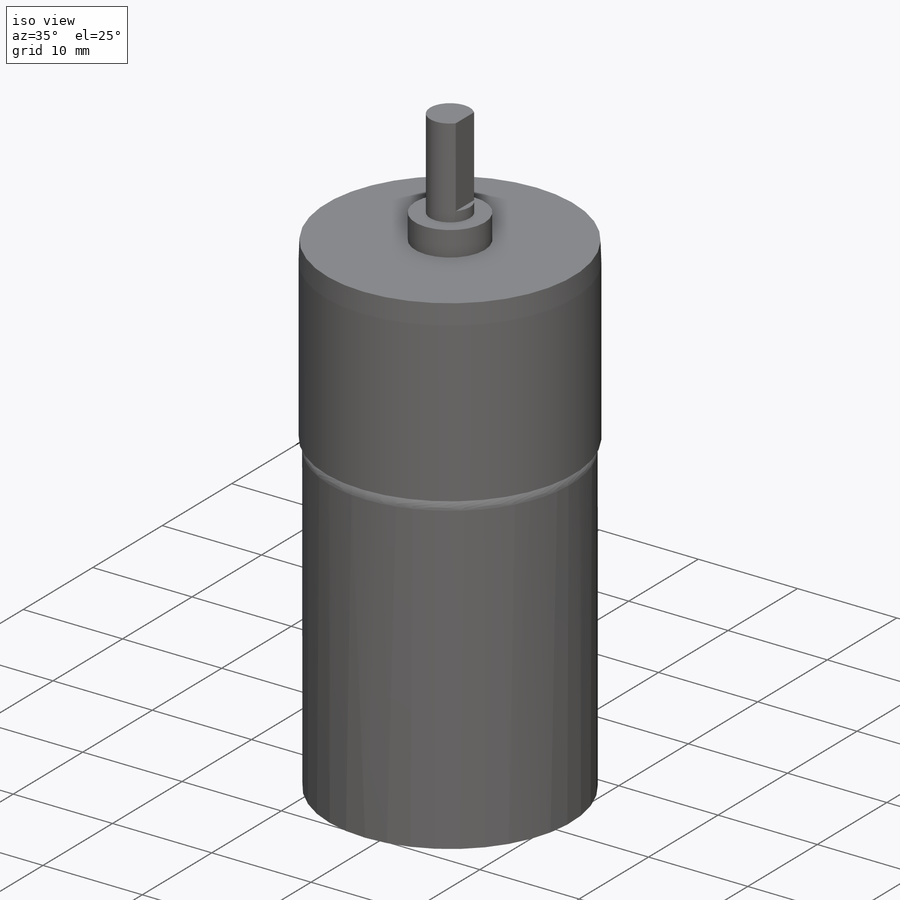
[diagram: iso view]
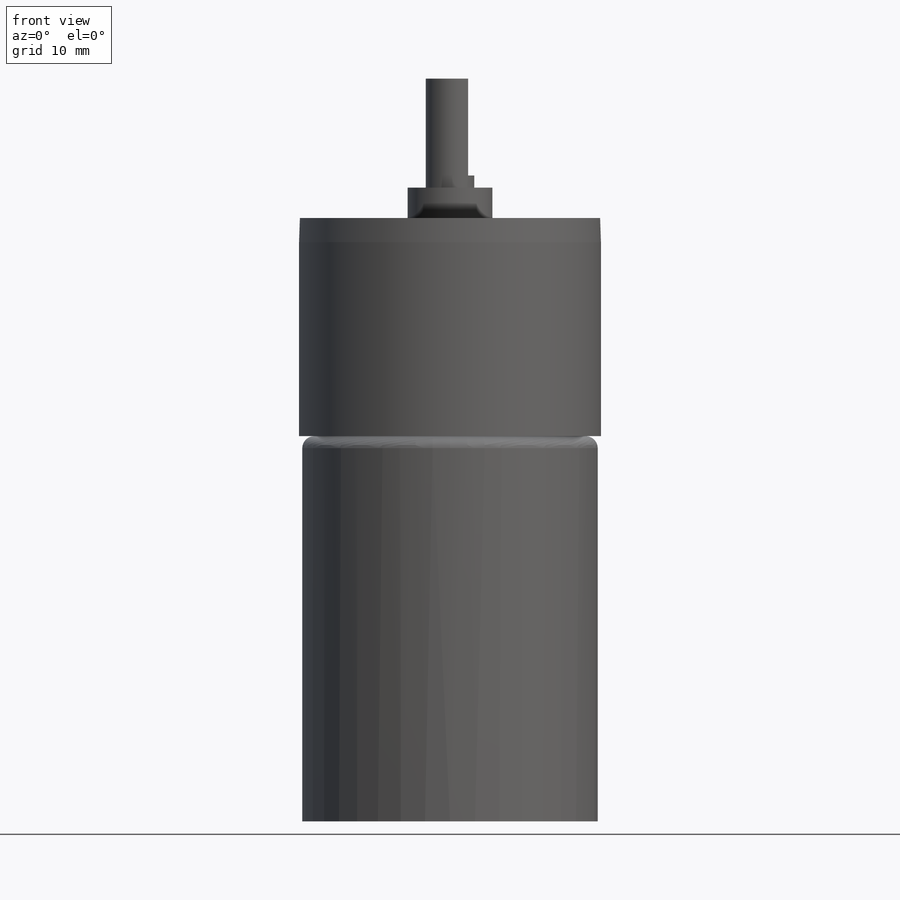
[diagram: front view]
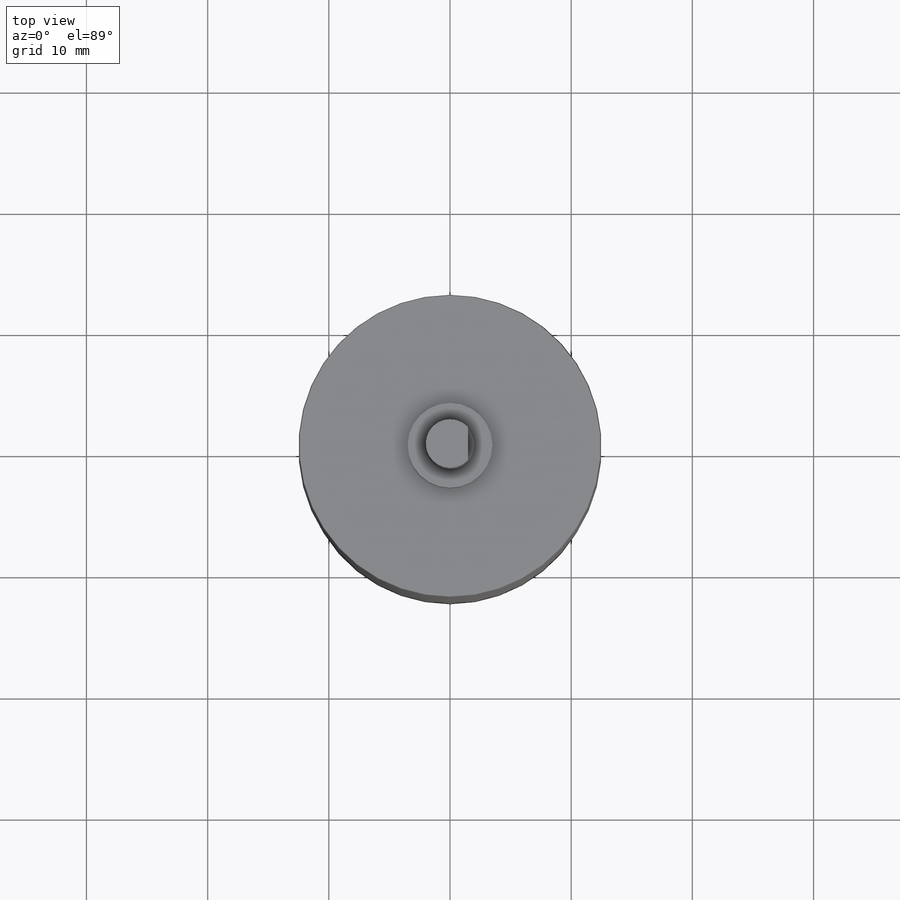
[diagram: top view]
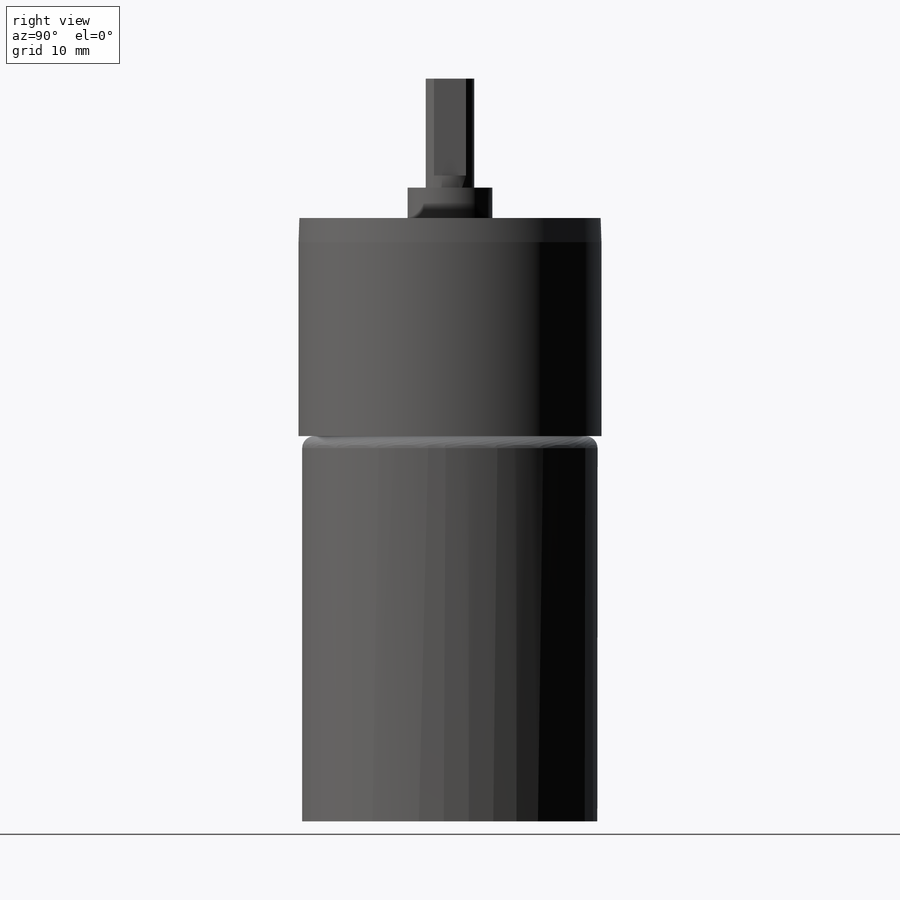
[diagram: right view]
SOLIDWORKS PART (.sldprt)
format: sldprt  version: not decoded by parser v0  size: 195,072 bytes
history: native  units: mm
features: sketch x5, extrude x5, material x1, fillet x1, chamfer x1 (+16 scaffold rows collapsed)
feature tree (29):
  scaffold x16  (default folders/planes/origin — collapsed)
  material  "Material <not specified>"
  sketch  "Sketch1"  dims[D1=~52.344322mm]
  extrude  "Boss-Extrude1"  Depth=30.8mm
  fillet  "Fillet2"  Radius=1mm
  sketch  "Sketch4"  dims[D1=25.0mm]
  extrude  "Boss-Extrude2"  Depth=18mm
  chamfer  "Chamfer5"  Distance=2mm Angle=2deg
  sketch  "Sketch5"  dims[D1=~2.741792mm]
  extrude  "Boss-Extrude3"  Depth=2.5mm
  sketch  "Sketch6"  dims[D1=4.0mm]
  extrude  "Boss-Extrude4"  Depth=1mm
  sketch  "Sketch12"  dims[D1=3.5mm]
  extrude  "Boss-Extrude6"  Depth=8mm
decode coverage: 12 of 12 modeling features carry decoded parameters
note: ~ marks probable driven/reference dimensions
note: suppression state not decoded; provenance and decode notes live in map.json
